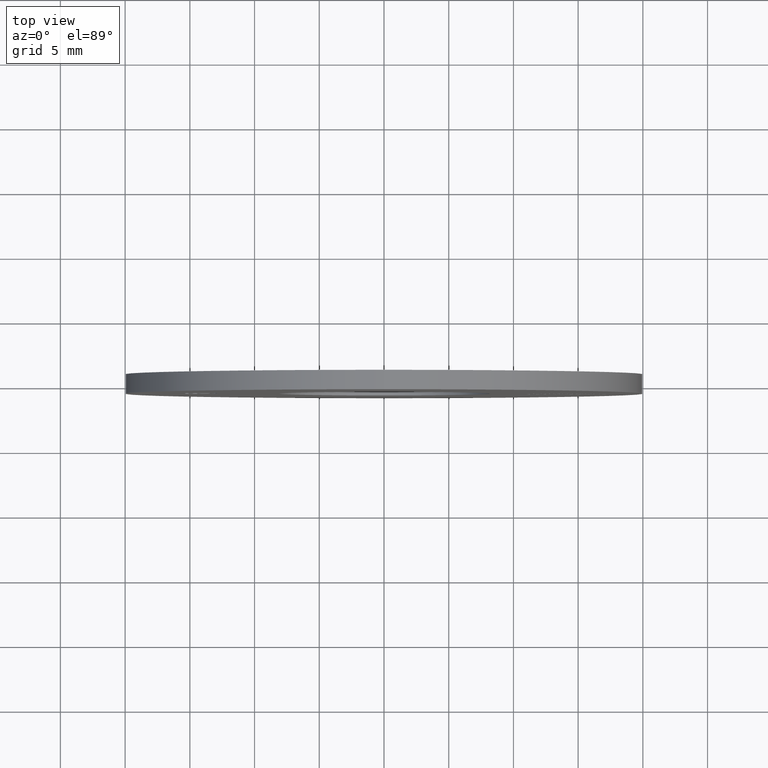
[diagram: clean part render]
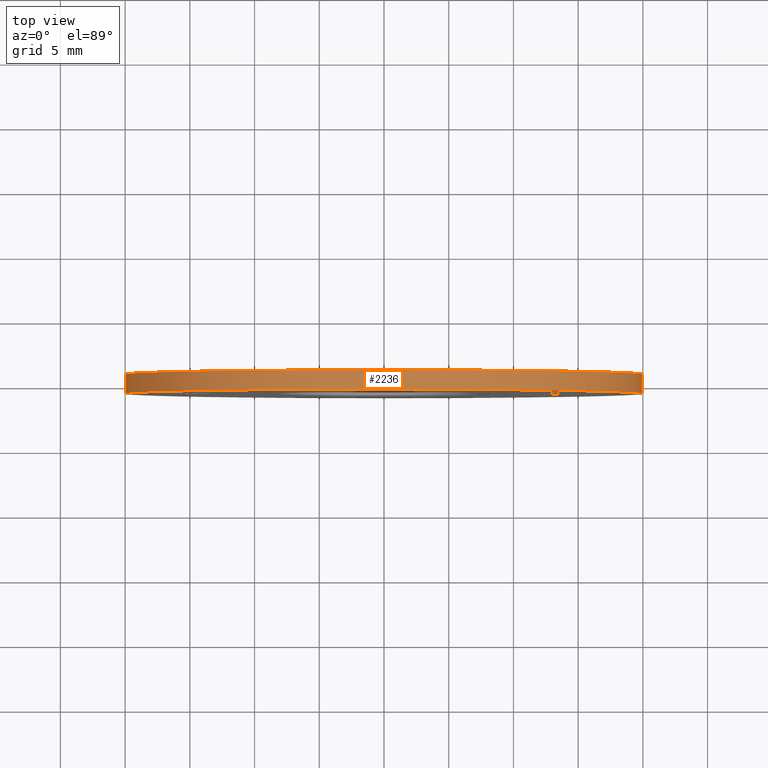
[diagram: same view with one face highlighted and labeled with its STEP entity id]
A machine part, top view. The second image highlights one B-rep face of the part: STEP entity #2236.
In plain terms, the highlighted cylindrical surface (bore or boss wall) has radius 20 mm, axis along (-0, -1, -0).
Its self-contained STEP definition (entity closure, byte-faithful):
#18 = VERTEX_POINT ( 'NONE', #3045 ) ;
#243 = EDGE_CURVE ( 'NONE', #11416, #11416, #12899, .T. ) ;
#925 = ORIENTED_EDGE ( 'NONE', *, *, #243, .F. ) ;
#1143 = CARTESIAN_POINT ( 'NONE',  ( 0.000000000000000000, 0.7500000000000000000, 20.00000000000000000 ) ) ;
#1796 = DIRECTION ( 'NONE',  ( 0.000000000000000000, 1.000000000000000000, 0.000000000000000000 ) ) ;
#2236 = ADVANCED_FACE ( 'NONE', ( #10052, #4245 ), #12907, .T. ) ;
#2684 = CARTESIAN_POINT ( 'NONE',  ( 0.000000000000000000, 0.7500000000000000000, 0.000000000000000000 ) ) ;
#3045 = CARTESIAN_POINT ( 'NONE',  ( 0.000000000000000000, -0.7500000000000000000, 20.00000000000000000 ) ) ;
#3222 = AXIS2_PLACEMENT_3D ( 'NONE', #2684, #8773, #7860 ) ;
#3681 = DIRECTION ( 'NONE',  ( -0.000000000000000000, -1.000000000000000000, -0.000000000000000000 ) ) ;
#3707 = CARTESIAN_POINT ( 'NONE',  ( 0.000000000000000000, -0.7500000000000000000, 0.000000000000000000 ) ) ;
#4234 = EDGE_LOOP ( 'NONE', ( #8319 ) ) ;
#4245 = FACE_OUTER_BOUND ( 'NONE', #4234, .T. ) ;
#5539 = AXIS2_PLACEMENT_3D ( 'NONE', #3707, #1796, #7801 ) ;
#6389 = EDGE_CURVE ( 'NONE', #18, #18, #6585, .T. ) ;
#6585 = CIRCLE ( 'NONE', #5539, 20.00000000000000000 ) ;
#7801 = DIRECTION ( 'NONE',  ( 0.000000000000000000, 0.000000000000000000, 1.000000000000000000 ) ) ;
#7860 = DIRECTION ( 'NONE',  ( 0.000000000000000000, 0.000000000000000000, 1.000000000000000000 ) ) ;
#8319 = ORIENTED_EDGE ( 'NONE', *, *, #6389, .T. ) ;
#8649 = EDGE_LOOP ( 'NONE', ( #925 ) ) ;
#8667 = DIRECTION ( 'NONE',  ( 0.000000000000000000, 0.000000000000000000, -1.000000000000000000 ) ) ;
#8773 = DIRECTION ( 'NONE',  ( 0.000000000000000000, 1.000000000000000000, 0.000000000000000000 ) ) ;
#9720 = CARTESIAN_POINT ( 'NONE',  ( 0.000000000000000000, 0.7500000000000000000, 0.000000000000000000 ) ) ;
#9998 = AXIS2_PLACEMENT_3D ( 'NONE', #9720, #3681, #8667 ) ;
#10052 = FACE_OUTER_BOUND ( 'NONE', #8649, .T. ) ;
#11416 = VERTEX_POINT ( 'NONE', #1143 ) ;
#12899 = CIRCLE ( 'NONE', #3222, 20.00000000000000000 ) ;
#12907 = CYLINDRICAL_SURFACE ( 'NONE', #9998, 20.00000000000000000 ) ;